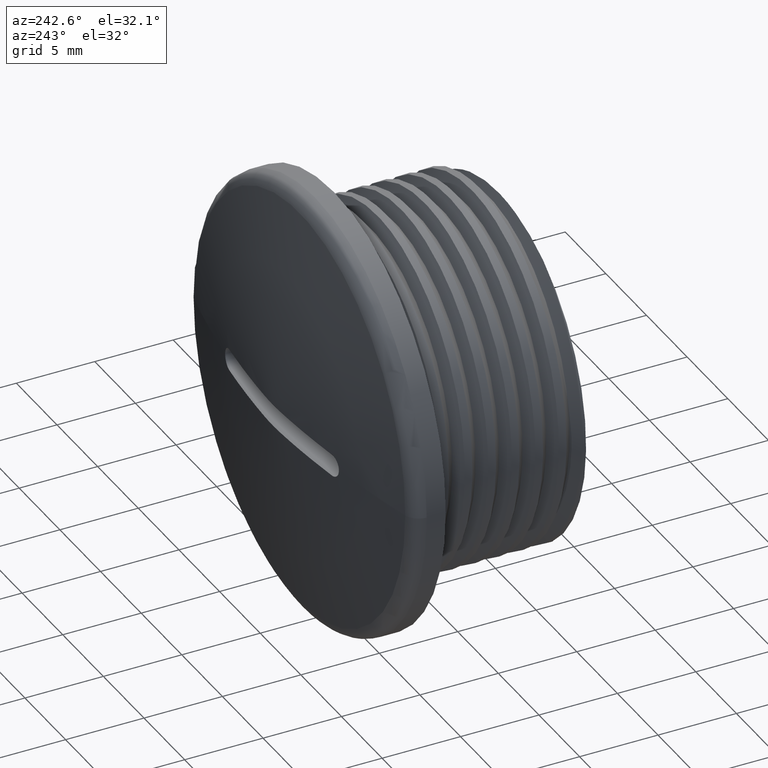
[diagram: clean part render]
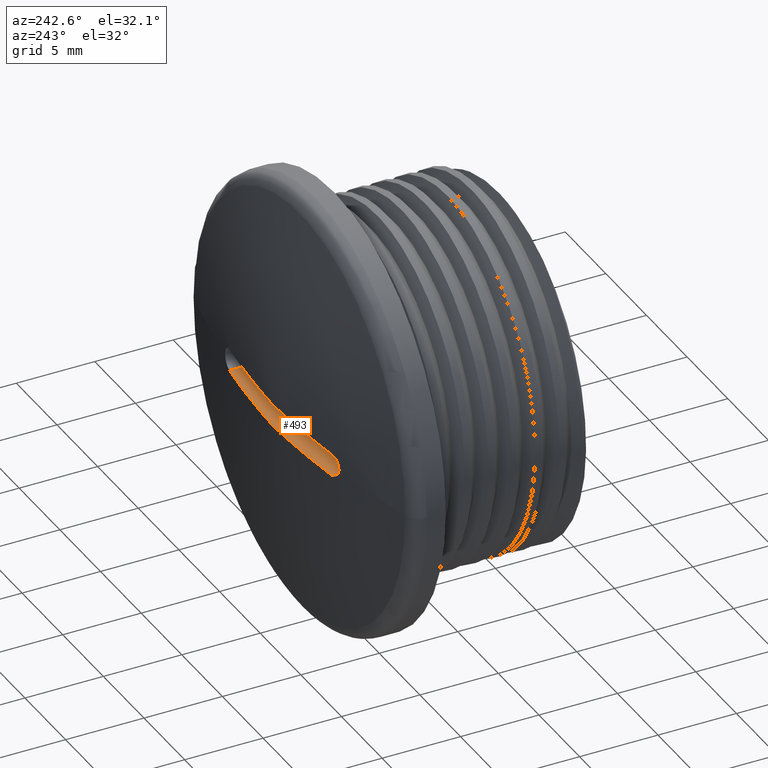
[diagram: same view with one face highlighted and labeled with its STEP entity id]
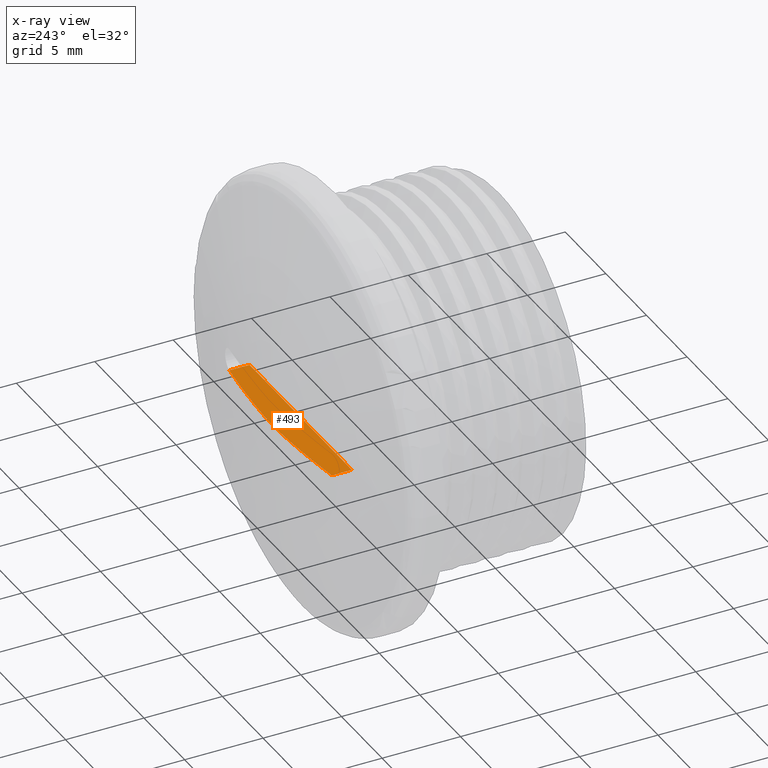
[diagram: x-ray of the same camera — body ghosted, the highlighted face saturated]
A machine part, auxiliary view. The second image highlights one B-rep face of the part: STEP entity #493.
The next image is the same camera in x-ray: the body ghosted, the highlighted face saturated — about 0% of this face is hidden behind the body in this view.
In plain terms, the highlighted planar face has unit normal (0, 0, 1).
Its self-contained STEP definition (entity closure, byte-faithful):
#48 = VERTEX_POINT ( 'NONE', #2072 ) ;
#50 = VERTEX_POINT ( 'NONE', #2080 ) ;
#95 = ORIENTED_EDGE ( 'NONE', *, *, #497, .T. ) ;
#122 = ORIENTED_EDGE ( 'NONE', *, *, #461, .T. ) ;
#138 = ORIENTED_EDGE ( 'NONE', *, *, #468, .F. ) ;
#140 = ORIENTED_EDGE ( 'NONE', *, *, #483, .T. ) ;
#259 = B_SPLINE_CURVE_WITH_KNOTS ( 'NONE', 3,
 ( #1591, #1570, #1603, #1584, #1577, #1575, #1578, #1583, #1586, #1587, #1588, #1572, #1573, #1596 ),
 .UNSPECIFIED., .F., .F.,
 ( 4, 2, 2, 2, 2, 2, 4 ),
 ( 2.261802691389900500E-017, 0.003156648092116585400, 0.004734972138174867000, 0.006313296184233149100, 0.007891620230291432000, 0.009469944276349714900, 0.01262659236846627900 ),
 .UNSPECIFIED. ) ;
#353 = CARTESIAN_POINT ( 'NONE',  ( -6.300000000000088600, 12.41522714884903100, -0.6999999999999999600 ) ) ;
#420 = EDGE_LOOP ( 'NONE', ( #140, #138, #95, #122 ) ) ;
#461 = EDGE_CURVE ( 'NONE', #2092, #1606, #1567, .T. ) ;
#468 = EDGE_CURVE ( 'NONE', #50, #48, #259, .T. ) ;
#483 = EDGE_CURVE ( 'NONE', #1606, #48, #630, .T. ) ;
#493 = ADVANCED_FACE ( 'NONE', ( #688 ), #667, .T. ) ;
#497 = EDGE_CURVE ( 'NONE', #50, #2092, #786, .T. ) ;
#630 = LINE ( 'NONE', #654, #1652 ) ;
#650 = DIRECTION ( 'NONE',  ( -0.0000000000000000000, 1.000000000000000000, 0.0000000000000000000 ) ) ;
#654 = CARTESIAN_POINT ( 'NONE',  ( 6.299999999999998900, 16.94943874192479800, -0.6999999999999999600 ) ) ;
#667 = PLANE ( 'NONE',  #1664 ) ;
#688 = FACE_OUTER_BOUND ( 'NONE', #420, .T. ) ;
#691 = CARTESIAN_POINT ( 'NONE',  ( -7.000000000000000000, 16.94943874192479800, -0.6999999999999999600 ) ) ;
#692 = DIRECTION ( 'NONE',  ( 1.000000000000000000, 0.0000000000000000000, -0.0000000000000000000 ) ) ;
#696 = DIRECTION ( 'NONE',  ( 0.0000000000000000000, 0.0000000000000000000, 1.000000000000000000 ) ) ;
#760 = CARTESIAN_POINT ( 'NONE',  ( -6.300000000000088600, 16.94943874192479800, -0.6999999999999999600 ) ) ;
#772 = DIRECTION ( 'NONE',  ( 0.0000000000000000000, -1.000000000000000000, -0.0000000000000000000 ) ) ;
#786 = LINE ( 'NONE', #760, #1662 ) ;
#994 = CARTESIAN_POINT ( 'NONE',  ( 6.299999999999998900, 12.41522714884903100, -0.6999999999999999600 ) ) ;
#1549 = DIRECTION ( 'NONE',  ( 1.000000000000000000, 0.0000000000000000000, 0.0000000000000000000 ) ) ;
#1559 = CARTESIAN_POINT ( 'NONE',  ( -7.000000000000000000, 12.41522714884903100, -0.6999999999999999600 ) ) ;
#1567 = LINE ( 'NONE', #1559, #1628 ) ;
#1570 = CARTESIAN_POINT ( 'NONE',  ( -5.255535049242146400, 13.83714902167702800, -0.6999999999999999600 ) ) ;
#1572 = CARTESIAN_POINT ( 'NONE',  ( 4.204371391222261800, 13.95143313066130200, -0.7000000000000000700 ) ) ;
#1573 = CARTESIAN_POINT ( 'NONE',  ( 5.253619666624492100, 13.83740174636484400, -0.7000000000000000700 ) ) ;
#1575 = CARTESIAN_POINT ( 'NONE',  ( -1.061111620996396000, 14.18555091702437700, -0.7000000000000001800 ) ) ;
#1577 = CARTESIAN_POINT ( 'NONE',  ( -2.111723064919194900, 14.12301166306273700, -0.6999999999999998400 ) ) ;
#1578 = CARTESIAN_POINT ( 'NONE',  ( -0.5355332679631198400, 14.21348179471930700, -0.7000000000000001800 ) ) ;
#1583 = CARTESIAN_POINT ( 'NONE',  ( 0.5201375093875213500, 14.21406242542867700, -0.7000000000000000700 ) ) ;
#1584 = CARTESIAN_POINT ( 'NONE',  ( -2.636439275954783700, 14.08452264920489900, -0.6999999999999998400 ) ) ;
#1586 = CARTESIAN_POINT ( 'NONE',  ( 1.047466991022760500, 14.18624319827413100, -0.7000000000000000700 ) ) ;
#1587 = CARTESIAN_POINT ( 'NONE',  ( 2.100831425102684500, 14.12377718109342700, -0.7000000000000000700 ) ) ;
#1588 = CARTESIAN_POINT ( 'NONE',  ( 2.627023665933992300, 14.08525929526774000, -0.6999999999999999600 ) ) ;
#1591 = CARTESIAN_POINT ( 'NONE',  ( -6.300000000000065500, 13.69933735095171000, -0.6999999999999999600 ) ) ;
#1596 = CARTESIAN_POINT ( 'NONE',  ( 6.300000000000001600, 13.69933735095170800, -0.6999999999999999600 ) ) ;
#1603 = CARTESIAN_POINT ( 'NONE',  ( -4.209105843805045500, 13.95090564298233500, -0.6999999999999999600 ) ) ;
#1606 = VERTEX_POINT ( 'NONE', #994 ) ;
#1628 = VECTOR ( 'NONE', #1549, 1000.000000000000000 ) ;
#1652 = VECTOR ( 'NONE', #650, 1000.000000000000000 ) ;
#1662 = VECTOR ( 'NONE', #772, 1000.000000000000000 ) ;
#1664 = AXIS2_PLACEMENT_3D ( 'NONE', #691, #696, #692 ) ;
#2072 = CARTESIAN_POINT ( 'NONE',  ( 6.300000000000001600, 13.69933735095170800, -0.6999999999999999600 ) ) ;
#2080 = CARTESIAN_POINT ( 'NONE',  ( -6.300000000000065500, 13.69933735095171000, -0.6999999999999999600 ) ) ;
#2092 = VERTEX_POINT ( 'NONE', #353 ) ;